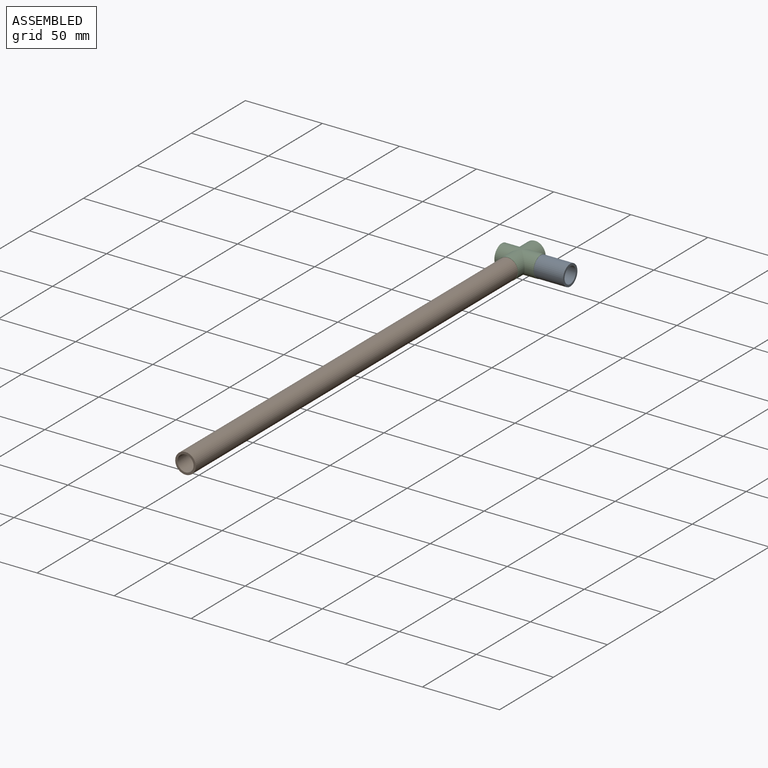
[diagram: assembled view]
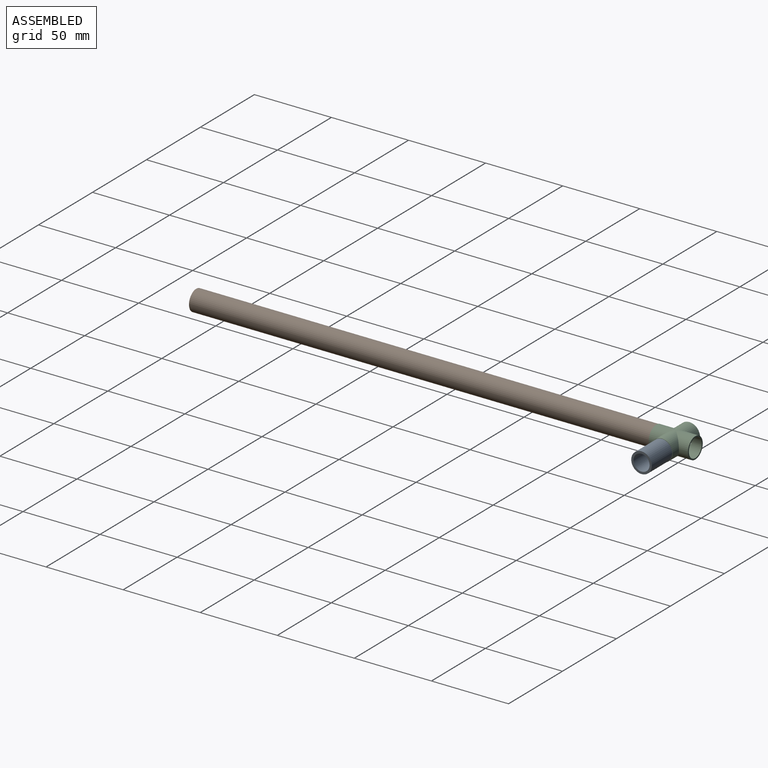
[diagram: assembled view, second angle]
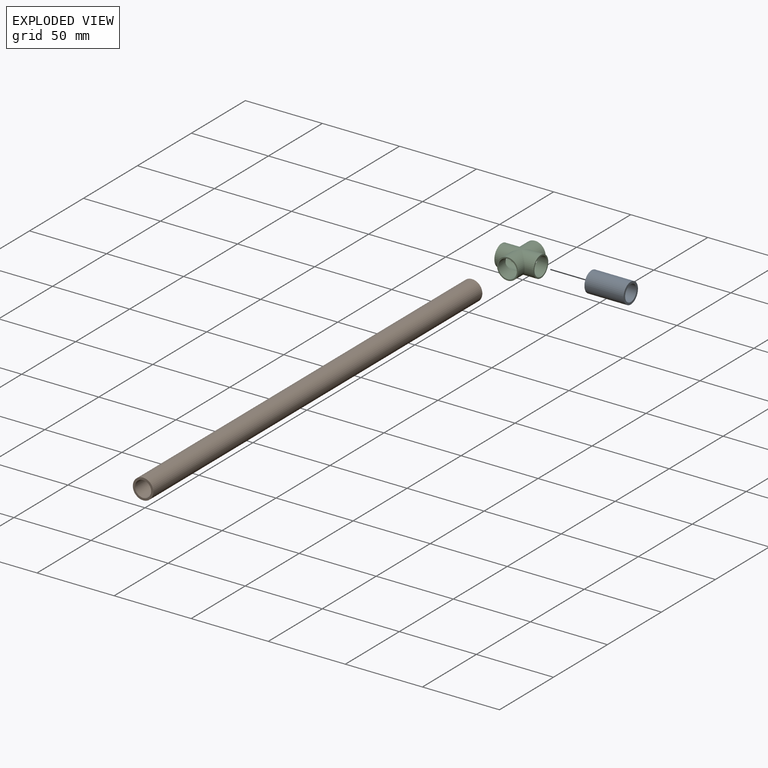
[diagram: exploded view]
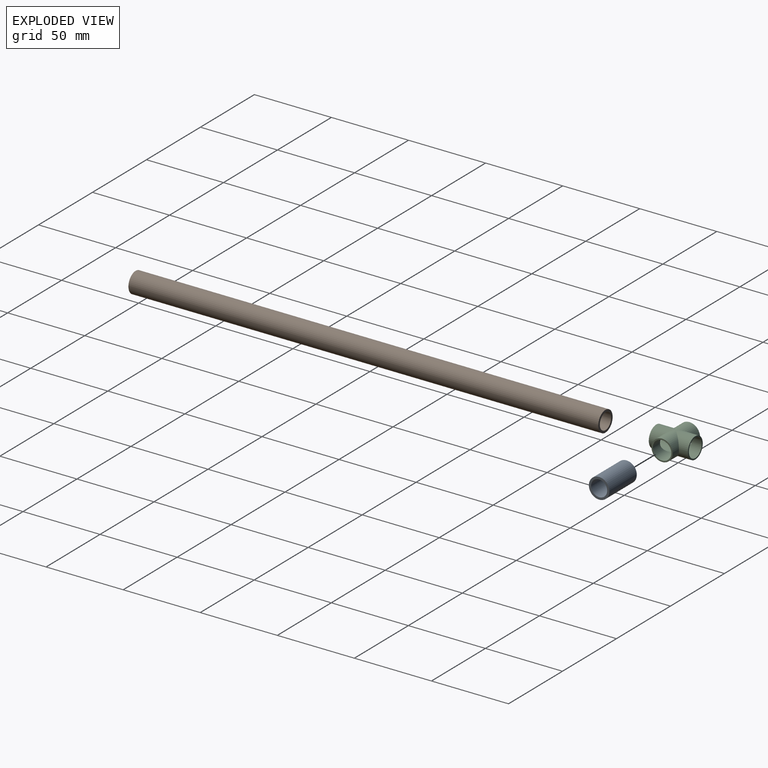
[diagram: exploded view, second angle]
ASSEMBLY  parts=3 mates=2
PART A: 4 faces, bbox 13.3x25.4x13.3 mm
  f0: cylinder r=5.23mm len=25.4mm, axis (0,1,0), area 835.1mm2, adj f2,f3
  f1: cylinder r=6.67mm len=25.4mm, axis (0,1,0), area 1064.1mm2, adj f2,f3
  f2: plane 13.34x13.34mm, normal (0,-1,0), area 53.7mm2, adj f0,f1
  f3: plane 13.34x13.34mm, normal (0,1,0), area 53.7mm2, adj f0,f1
PART B: 4 faces, bbox 13.3x304.8x13.3 mm
  f0: cylinder r=5.23mm len=304.8mm, axis (0,1,0), area 10020.6mm2, adj f2,f3
  f1: cylinder r=6.67mm len=304.8mm, axis (0,1,0), area 12769mm2, adj f2,f3
  f2: plane 13.34x13.34mm, normal (0,-1,0), area 53.7mm2, adj f0,f1
  f3: plane 13.34x13.34mm, normal (0,1,0), area 53.7mm2, adj f0,f1
PART C: 12 faces, bbox 25.4x25.4x13.7 mm
  f0: cylinder r=6.01mm len=12.7mm, axis (1,0,0), area 335mm2, adj f4,f10,f11
  f1: cylinder r=6.01mm len=12.7mm, axis (1,0,0), area 335mm2, adj f9,f10,f11
  f2: cylinder r=6.86mm len=13.72mm, axis (0,1,0), area 359.1mm2, adj f3,f5,f8
  f3: plane 13.72x13.72mm, normal (0,-1,0), area 34.4mm2, adj f2,f10
  f4: plane 13.72x13.72mm, normal (-1,0,0), area 34.4mm2, adj f0,f5
  f5: cylinder r=6.86mm len=13.72mm, axis (-1,0,0), area 359.1mm2, adj f2,f4,f7
  f6: plane 13.72x13.72mm, normal (0,1,0), area 34.4mm2, adj f7,f11
  f7: cylinder r=6.86mm len=13.72mm, axis (0,1,0), area 359.1mm2, adj f5,f6,f8
  f8: cylinder r=6.86mm len=13.72mm, axis (-1,0,0), area 359.1mm2, adj f2,f7,f9
  f9: plane 13.72x13.72mm, normal (1,0,0), area 34.4mm2, adj f1,f8
  f10: cylinder r=6.01mm len=12.7mm, axis (0,1,0), area 335mm2, adj f0,f1,f3
  f11: cylinder r=6.01mm len=12.7mm, axis (0,1,0), area 335mm2, adj f0,f1,f6
PLACE A rot(axis=(0,0,1),90deg) t=(19.12,-1.48,-3.91)mm
PLACE B rot(axis=(1,0,0),180deg) t=(0.11,-160.19,-3.91)mm
PLACE C t=(0.11,-1.48,-3.91)mm
MATE fastened A.f1 <-> C.f5  axis (-1,0,0) through (6.42,-1.48,-3.91)mm
MATE fastened B.f0 <-> C.f2  axis (0,-1,0) through (0.11,-7.79,-3.91)mm
